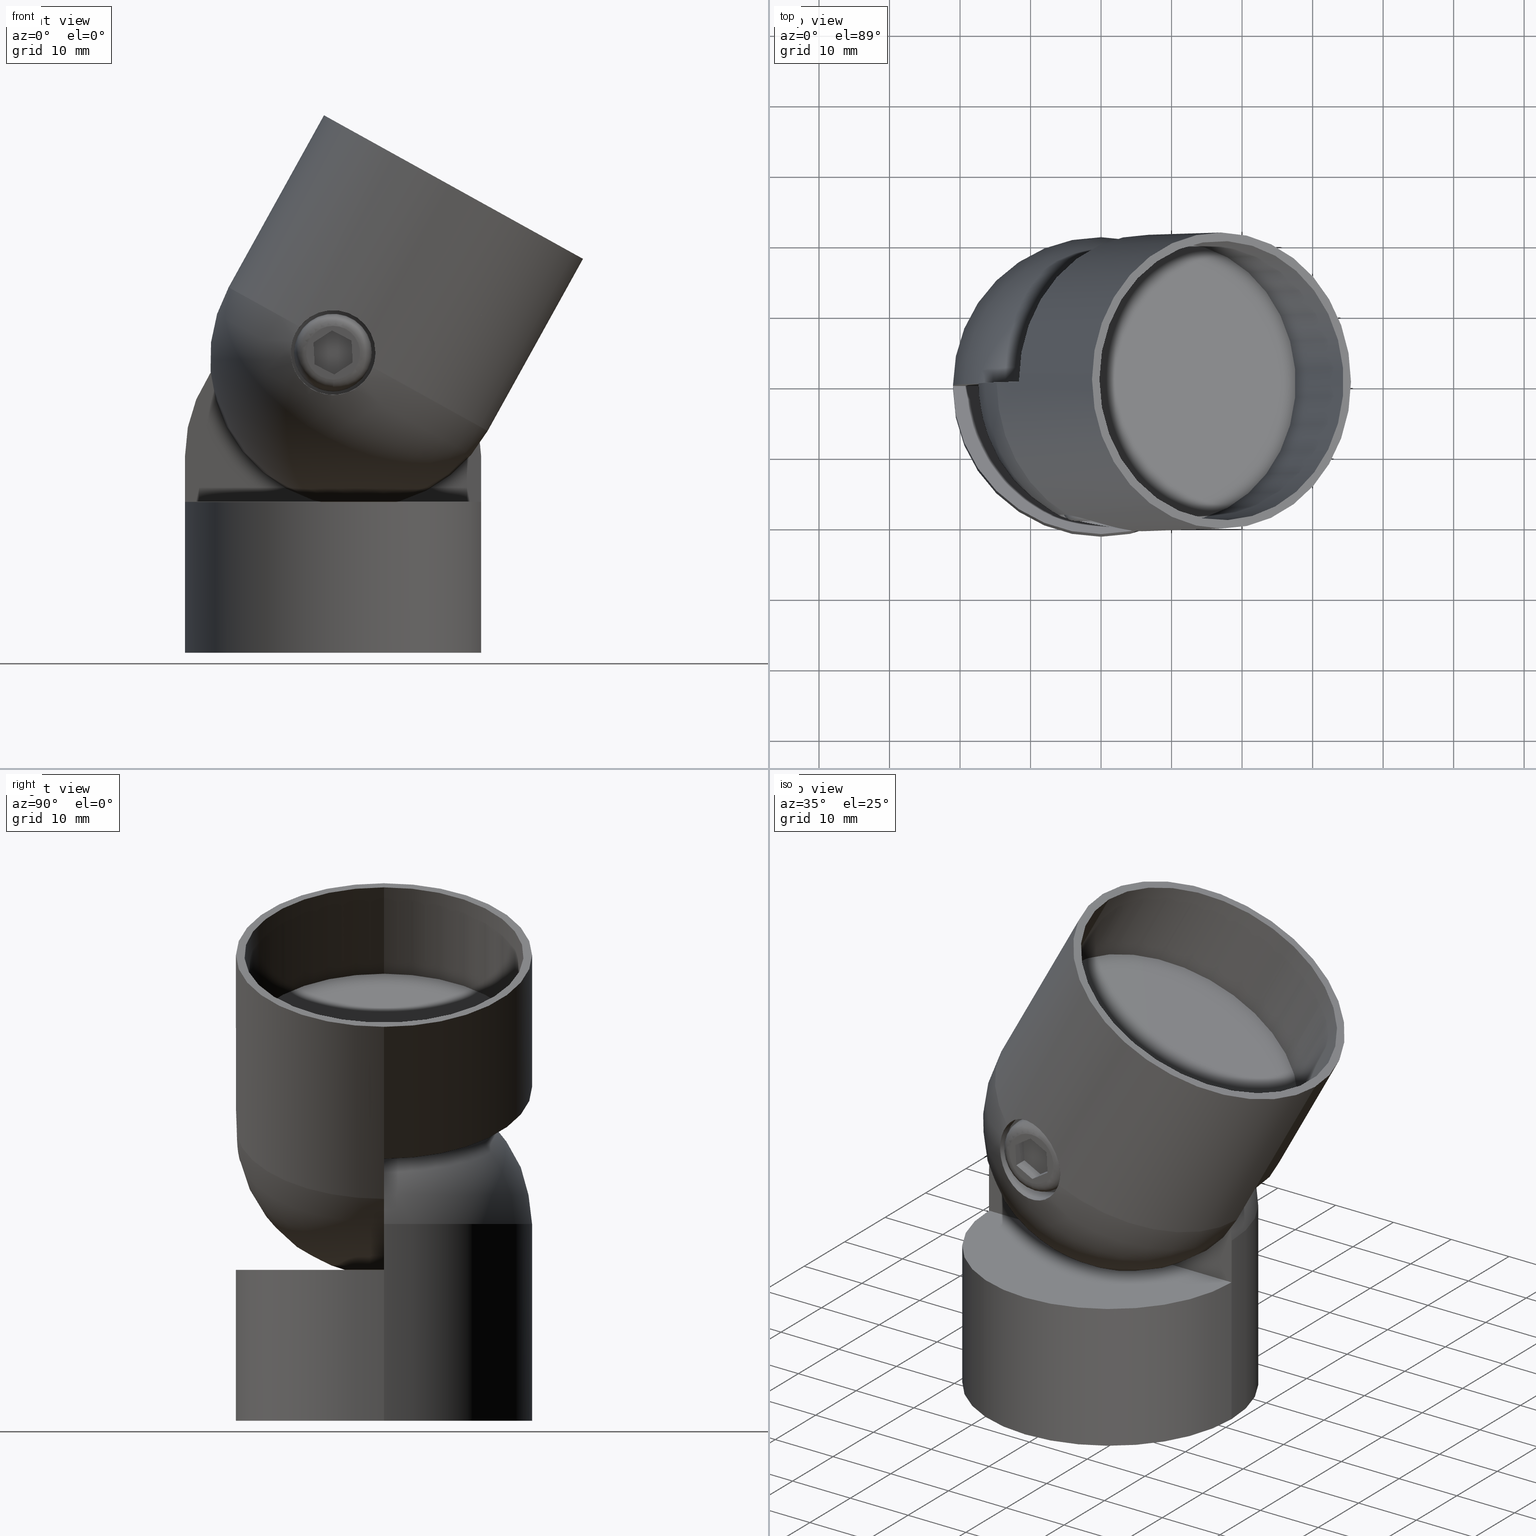
[diagram: canonical four-view strip — front | top / right | iso, engineering-drawing reading convention]
A machine part, canonical four-view strip (front | top / right | iso — engineering-drawing reading convention). The complete STEP part file that produces these views, byte-faithful:
ISO-10303-21;
HEADER;
/* Generated by software containing ST-Developer
 * from STEP Tools, Inc. (www.steptools.com) 
 */
/* OPTION: using custom schema-name function */

FILE_DESCRIPTION(
/* description */ (''),
/* implementation_level */ '2;1');

FILE_NAME(
/* name */ '50604-240_Cosch_Edelstahltechnik.stp',
/* time_stamp */ '2018-11-17T18:22:57+01:00',
/* author */ (''),
/* organization */ (''),
/* preprocessor_version */ 'ST-DEVELOPER v16',
/* originating_system */ 'SIEMENS PLM Software NX 11.0',
/* authorisation */ '');

FILE_SCHEMA (('AUTOMOTIVE_DESIGN { 1 0 10303 214 3 1 1 1 }'));
ENDSEC;

DATA;
#10=CONSTRUCTIVE_GEOMETRY_REPRESENTATION_RELATIONSHIP(
'supplemental geometry','',#34,#11);
#11=CONSTRUCTIVE_GEOMETRY_REPRESENTATION('supplemental geometry',(#436),
#790);
#12=GEOMETRICALLY_BOUNDED_WIREFRAME_SHAPE_REPRESENTATION(
'Goge239860DCck8x-None',(#35),#790);
#13=PROPERTY_DEFINITION_REPRESENTATION(#17,#15);
#14=PROPERTY_DEFINITION_REPRESENTATION(#18,#16);
#15=REPRESENTATION('',(#19),#790);
#16=REPRESENTATION('',(#20),#790);
#17=PROPERTY_DEFINITION('pmi validation property','',#25);
#18=PROPERTY_DEFINITION('pmi validation property','',#25);
#19=VALUE_REPRESENTATION_ITEM('number of annotations',COUNT_MEASURE(0.));
#20=VALUE_REPRESENTATION_ITEM('number of views',COUNT_MEASURE(0.));
#21=SHAPE_REPRESENTATION_RELATIONSHIP('None',
'relationship between Goge239860DCck8x-None and Goge239860DCck8x-None',
#34,#23);
#22=SHAPE_REPRESENTATION_RELATIONSHIP('None',
'relationship between Goge239860DCck8x-None and Goge239860DCck8x-None',
#34,#12);
#23=ADVANCED_BREP_SHAPE_REPRESENTATION('Goge239860DCck8x-None',(#49,#50),
#790);
#24=SHAPE_DEFINITION_REPRESENTATION(#25,#34);
#25=PRODUCT_DEFINITION_SHAPE('','',#26);
#26=PRODUCT_DEFINITION(' ','',#28,#27);
#27=PRODUCT_DEFINITION_CONTEXT('part definition',#33,'design');
#28=PRODUCT_DEFINITION_FORMATION_WITH_SPECIFIED_SOURCE(' ',' ',#30,
 .NOT_KNOWN.);
#29=PRODUCT_RELATED_PRODUCT_CATEGORY('part','',(#30));
#30=PRODUCT('Goge239860DCck8x','Goge239860DCck8x',' ',(#31));
#31=PRODUCT_CONTEXT(' ',#33,'mechanical');
#32=APPLICATION_PROTOCOL_DEFINITION('international standard',
'automotive_design',2010,#33);
#33=APPLICATION_CONTEXT(
'core data for automotive mechanical design processes');
#34=SHAPE_REPRESENTATION('Goge239860DCck8x-None',(#435),#790);
#35=GEOMETRIC_CURVE_SET('None',(#601,#602));
#36=TOROIDAL_SURFACE('',#471,3.8,1.7);
#37=B_SPLINE_CURVE_WITH_KNOTS('',3,(#629,#630,#631,#632,#633,#634,#635,
#636,#637,#638,#639,#640,#641,#642,#643,#644,#645,#646,#647,#648,#649,#650,
#651,#652,#653,#654,#655,#656,#657,#658,#659,#660,#661,#662,#663,#664),
 .UNSPECIFIED.,.F.,.F.,(4,2,2,2,2,2,2,2,2,2,2,2,2,2,2,2,2,4),(0.,0.0624999999999983,
0.124999999999997,0.187499999999995,0.218749999999995,0.249999999999994,
0.312499999999995,0.374999999999995,0.437499999999996,0.499999999999996,
0.562499999999997,0.624999999999997,0.687499999999998,0.749999999999998,
0.812499999999999,0.874999999999999,0.9375,1.),.UNSPECIFIED.);
#38=B_SPLINE_CURVE_WITH_KNOTS('',3,(#688,#689,#690,#691,#692,#693,#694,
#695,#696,#697,#698,#699,#700,#701,#702,#703,#704,#705,#706,#707,#708,#709,
#710,#711,#712,#713,#714,#715,#716,#717,#718,#719,#720,#721,#722,#723,#724,
#725,#726,#727,#728,#729,#730,#731,#732,#733),.UNSPECIFIED.,.F.,.F.,(4,
2,2,2,2,2,2,2,1,2,2,2,2,2,1,2,2,2,2,2,2,2,2,4),(0.,0.0625000000000008,0.0937500000000012,
0.125000000000002,0.156250000000002,0.187500000000002,0.250000000000003,
0.281250000000003,0.312500000000003,0.343750000000003,0.375000000000003,
0.437500000000003,0.500000000000003,0.531250000000003,0.562500000000003,
0.593750000000003,0.625000000000002,0.687500000000002,0.750000000000002,
0.812500000000002,0.875000000000002,0.906250000000001,0.937500000000001,
1.),.UNSPECIFIED.);
#39=SURFACE_STYLE_USAGE(.BOTH.,#41);
#40=SURFACE_STYLE_USAGE(.BOTH.,#42);
#41=SURFACE_SIDE_STYLE('',(#43));
#42=SURFACE_SIDE_STYLE('',(#44));
#43=SURFACE_STYLE_FILL_AREA(#45);
#44=SURFACE_STYLE_FILL_AREA(#46);
#45=FILL_AREA_STYLE('',(#47));
#46=FILL_AREA_STYLE('',(#48));
#47=FILL_AREA_STYLE_COLOUR('',#434);
#48=FILL_AREA_STYLE_COLOUR('',#434);
#49=MANIFOLD_SOLID_BREP('',#51);
#50=MANIFOLD_SOLID_BREP('',#52);
#51=CLOSED_SHELL('',(#87,#88,#89,#90,#91,#92,#93));
#52=CLOSED_SHELL('',(#94,#95,#96,#97,#98,#99,#100,#101,#102,#103,#104,#105,
#106,#107,#108,#109,#110,#111,#112));
#53=SPHERICAL_SURFACE('',#447,21.);
#54=SPHERICAL_SURFACE('',#462,21.);
#55=FACE_OUTER_BOUND('',#193,.T.);
#56=FACE_OUTER_BOUND('',#194,.T.);
#57=FACE_OUTER_BOUND('',#195,.T.);
#58=FACE_OUTER_BOUND('',#198,.T.);
#59=FACE_OUTER_BOUND('',#203,.T.);
#60=FACE_OUTER_BOUND('',#204,.T.);
#61=FACE_OUTER_BOUND('',#205,.T.);
#62=FACE_OUTER_BOUND('',#216,.T.);
#63=FACE_OUTER_BOUND('',#217,.T.);
#64=FACE_OUTER_BOUND('',#218,.T.);
#65=FACE_OUTER_BOUND('',#219,.T.);
#66=FACE_OUTER_BOUND('',#220,.T.);
#67=FACE_OUTER_BOUND('',#221,.T.);
#68=FACE_OUTER_BOUND('',#222,.T.);
#69=FACE_OUTER_BOUND('',#225,.T.);
#70=PLANE('',#442);
#71=PLANE('',#445);
#72=PLANE('',#446);
#73=PLANE('',#450);
#74=PLANE('',#457);
#75=PLANE('',#460);
#76=PLANE('',#461);
#77=PLANE('',#465);
#78=PLANE('',#468);
#79=PLANE('',#472);
#80=PLANE('',#473);
#81=PLANE('',#474);
#82=PLANE('',#475);
#83=PLANE('',#476);
#84=PLANE('',#477);
#85=PLANE('',#478);
#86=PLANE('',#481);
#87=ADVANCED_FACE('',(#167,#168),#113,.T.);
#88=ADVANCED_FACE('',(#169,#170),#70,.T.);
#89=ADVANCED_FACE('',(#55),#71,.F.);
#90=ADVANCED_FACE('',(#56),#72,.T.);
#91=ADVANCED_FACE('',(#57),#53,.T.);
#92=ADVANCED_FACE('',(#171,#172),#114,.F.);
#93=ADVANCED_FACE('',(#58),#73,.T.);
#94=ADVANCED_FACE('',(#173,#174),#115,.T.);
#95=ADVANCED_FACE('',(#175,#176),#74,.T.);
#96=ADVANCED_FACE('',(#59),#75,.F.);
#97=ADVANCED_FACE('',(#60),#76,.T.);
#98=ADVANCED_FACE('',(#61),#54,.T.);
#99=ADVANCED_FACE('',(#177,#178),#77,.F.);
#100=ADVANCED_FACE('',(#179,#180),#116,.F.);
#101=ADVANCED_FACE('',(#181,#182),#78,.T.);
#102=ADVANCED_FACE('',(#183,#184),#117,.T.);
#103=ADVANCED_FACE('',(#185,#186),#36,.T.);
#104=ADVANCED_FACE('',(#62),#79,.F.);
#105=ADVANCED_FACE('',(#63),#80,.F.);
#106=ADVANCED_FACE('',(#64),#81,.F.);
#107=ADVANCED_FACE('',(#65),#82,.F.);
#108=ADVANCED_FACE('',(#66),#83,.F.);
#109=ADVANCED_FACE('',(#67),#84,.F.);
#110=ADVANCED_FACE('',(#68),#85,.T.);
#111=ADVANCED_FACE('',(#187,#188),#118,.F.);
#112=ADVANCED_FACE('',(#69),#86,.T.);
#113=CYLINDRICAL_SURFACE('',#440,21.);
#114=CYLINDRICAL_SURFACE('',#449,19.8);
#115=CYLINDRICAL_SURFACE('',#455,21.);
#116=CYLINDRICAL_SURFACE('',#466,6.);
#117=CYLINDRICAL_SURFACE('',#470,5.5);
#118=CYLINDRICAL_SURFACE('',#480,19.8);
#119=LINE('',#606,#143);
#120=LINE('',#611,#144);
#121=LINE('',#621,#145);
#122=LINE('',#669,#146);
#123=LINE('',#673,#147);
#124=LINE('',#685,#148);
#125=LINE('',#741,#149);
#126=LINE('',#744,#150);
#127=LINE('',#746,#151);
#128=LINE('',#748,#152);
#129=LINE('',#750,#153);
#130=LINE('',#752,#154);
#131=LINE('',#760,#155);
#132=LINE('',#762,#156);
#133=LINE('',#764,#157);
#134=LINE('',#766,#158);
#135=LINE('',#768,#159);
#136=LINE('',#770,#160);
#137=LINE('',#772,#161);
#138=LINE('',#774,#162);
#139=LINE('',#776,#163);
#140=LINE('',#778,#164);
#141=LINE('',#780,#165);
#142=LINE('',#782,#166);
#143=VECTOR('',#488,1.);
#144=VECTOR('',#491,1.);
#145=VECTOR('',#504,1.);
#146=VECTOR('',#519,1.);
#147=VECTOR('',#522,1.);
#148=VECTOR('',#537,1.);
#149=VECTOR('',#552,1.);
#150=VECTOR('',#553,1.);
#151=VECTOR('',#554,1.);
#152=VECTOR('',#555,1.);
#153=VECTOR('',#556,1.);
#154=VECTOR('',#557,1.);
#155=VECTOR('',#568,1.);
#156=VECTOR('',#569,1.);
#157=VECTOR('',#570,1.);
#158=VECTOR('',#573,1.);
#159=VECTOR('',#574,1.);
#160=VECTOR('',#577,1.);
#161=VECTOR('',#578,1.);
#162=VECTOR('',#581,1.);
#163=VECTOR('',#582,1.);
#164=VECTOR('',#585,1.);
#165=VECTOR('',#586,1.);
#166=VECTOR('',#589,1.);
#167=FACE_BOUND('',#189,.T.);
#168=FACE_BOUND('',#190,.T.);
#169=FACE_BOUND('',#191,.T.);
#170=FACE_BOUND('',#192,.T.);
#171=FACE_BOUND('',#196,.T.);
#172=FACE_BOUND('',#197,.T.);
#173=FACE_BOUND('',#199,.T.);
#174=FACE_BOUND('',#200,.T.);
#175=FACE_BOUND('',#201,.T.);
#176=FACE_BOUND('',#202,.T.);
#177=FACE_BOUND('',#206,.T.);
#178=FACE_BOUND('',#207,.T.);
#179=FACE_BOUND('',#208,.T.);
#180=FACE_BOUND('',#209,.T.);
#181=FACE_BOUND('',#210,.T.);
#182=FACE_BOUND('',#211,.T.);
#183=FACE_BOUND('',#212,.T.);
#184=FACE_BOUND('',#213,.T.);
#185=FACE_BOUND('',#214,.T.);
#186=FACE_BOUND('',#215,.T.);
#187=FACE_BOUND('',#223,.T.);
#188=FACE_BOUND('',#224,.T.);
#189=EDGE_LOOP('',(#226));
#190=EDGE_LOOP('',(#227,#228,#229,#230));
#191=EDGE_LOOP('',(#231));
#192=EDGE_LOOP('',(#232));
#193=EDGE_LOOP('',(#233,#234,#235,#236,#237));
#194=EDGE_LOOP('',(#238,#239));
#195=EDGE_LOOP('',(#240,#241,#242));
#196=EDGE_LOOP('',(#243));
#197=EDGE_LOOP('',(#244));
#198=EDGE_LOOP('',(#245));
#199=EDGE_LOOP('',(#246,#247,#248,#249,#250,#251));
#200=EDGE_LOOP('',(#252));
#201=EDGE_LOOP('',(#253));
#202=EDGE_LOOP('',(#254));
#203=EDGE_LOOP('',(#255,#256,#257,#258,#259));
#204=EDGE_LOOP('',(#260,#261));
#205=EDGE_LOOP('',(#262,#263,#264,#265,#266));
#206=EDGE_LOOP('',(#267));
#207=EDGE_LOOP('',(#268));
#208=EDGE_LOOP('',(#269,#270));
#209=EDGE_LOOP('',(#271));
#210=EDGE_LOOP('',(#272,#273,#274,#275,#276,#277));
#211=EDGE_LOOP('',(#278));
#212=EDGE_LOOP('',(#279));
#213=EDGE_LOOP('',(#280));
#214=EDGE_LOOP('',(#281));
#215=EDGE_LOOP('',(#282));
#216=EDGE_LOOP('',(#283,#284,#285,#286));
#217=EDGE_LOOP('',(#287,#288,#289,#290));
#218=EDGE_LOOP('',(#291,#292,#293,#294));
#219=EDGE_LOOP('',(#295,#296,#297,#298));
#220=EDGE_LOOP('',(#299,#300,#301,#302));
#221=EDGE_LOOP('',(#303,#304,#305,#306));
#222=EDGE_LOOP('',(#307,#308,#309,#310,#311,#312));
#223=EDGE_LOOP('',(#313));
#224=EDGE_LOOP('',(#314));
#225=EDGE_LOOP('',(#315));
#226=ORIENTED_EDGE('',*,*,#350,.T.);
#227=ORIENTED_EDGE('',*,*,#351,.T.);
#228=ORIENTED_EDGE('',*,*,#352,.T.);
#229=ORIENTED_EDGE('',*,*,#353,.T.);
#230=ORIENTED_EDGE('',*,*,#354,.F.);
#231=ORIENTED_EDGE('',*,*,#355,.F.);
#232=ORIENTED_EDGE('',*,*,#350,.F.);
#233=ORIENTED_EDGE('',*,*,#353,.F.);
#234=ORIENTED_EDGE('',*,*,#356,.T.);
#235=ORIENTED_EDGE('',*,*,#357,.T.);
#236=ORIENTED_EDGE('',*,*,#351,.F.);
#237=ORIENTED_EDGE('',*,*,#358,.T.);
#238=ORIENTED_EDGE('',*,*,#358,.F.);
#239=ORIENTED_EDGE('',*,*,#354,.T.);
#240=ORIENTED_EDGE('',*,*,#352,.F.);
#241=ORIENTED_EDGE('',*,*,#357,.F.);
#242=ORIENTED_EDGE('',*,*,#356,.F.);
#243=ORIENTED_EDGE('',*,*,#359,.T.);
#244=ORIENTED_EDGE('',*,*,#355,.T.);
#245=ORIENTED_EDGE('',*,*,#359,.F.);
#246=ORIENTED_EDGE('',*,*,#360,.F.);
#247=ORIENTED_EDGE('',*,*,#361,.T.);
#248=ORIENTED_EDGE('',*,*,#362,.T.);
#249=ORIENTED_EDGE('',*,*,#363,.F.);
#250=ORIENTED_EDGE('',*,*,#364,.T.);
#251=ORIENTED_EDGE('',*,*,#365,.T.);
#252=ORIENTED_EDGE('',*,*,#366,.T.);
#253=ORIENTED_EDGE('',*,*,#367,.F.);
#254=ORIENTED_EDGE('',*,*,#366,.F.);
#255=ORIENTED_EDGE('',*,*,#362,.F.);
#256=ORIENTED_EDGE('',*,*,#368,.T.);
#257=ORIENTED_EDGE('',*,*,#369,.T.);
#258=ORIENTED_EDGE('',*,*,#364,.F.);
#259=ORIENTED_EDGE('',*,*,#370,.T.);
#260=ORIENTED_EDGE('',*,*,#370,.F.);
#261=ORIENTED_EDGE('',*,*,#363,.T.);
#262=ORIENTED_EDGE('',*,*,#371,.F.);
#263=ORIENTED_EDGE('',*,*,#365,.F.);
#264=ORIENTED_EDGE('',*,*,#369,.F.);
#265=ORIENTED_EDGE('',*,*,#368,.F.);
#266=ORIENTED_EDGE('',*,*,#361,.F.);
#267=ORIENTED_EDGE('',*,*,#372,.F.);
#268=ORIENTED_EDGE('',*,*,#373,.F.);
#269=ORIENTED_EDGE('',*,*,#360,.T.);
#270=ORIENTED_EDGE('',*,*,#371,.T.);
#271=ORIENTED_EDGE('',*,*,#373,.T.);
#272=ORIENTED_EDGE('',*,*,#374,.F.);
#273=ORIENTED_EDGE('',*,*,#375,.F.);
#274=ORIENTED_EDGE('',*,*,#376,.F.);
#275=ORIENTED_EDGE('',*,*,#377,.F.);
#276=ORIENTED_EDGE('',*,*,#378,.F.);
#277=ORIENTED_EDGE('',*,*,#379,.F.);
#278=ORIENTED_EDGE('',*,*,#380,.T.);
#279=ORIENTED_EDGE('',*,*,#381,.T.);
#280=ORIENTED_EDGE('',*,*,#372,.T.);
#281=ORIENTED_EDGE('',*,*,#380,.F.);
#282=ORIENTED_EDGE('',*,*,#381,.F.);
#283=ORIENTED_EDGE('',*,*,#374,.T.);
#284=ORIENTED_EDGE('',*,*,#382,.T.);
#285=ORIENTED_EDGE('',*,*,#383,.T.);
#286=ORIENTED_EDGE('',*,*,#384,.F.);
#287=ORIENTED_EDGE('',*,*,#379,.T.);
#288=ORIENTED_EDGE('',*,*,#385,.T.);
#289=ORIENTED_EDGE('',*,*,#386,.T.);
#290=ORIENTED_EDGE('',*,*,#382,.F.);
#291=ORIENTED_EDGE('',*,*,#378,.T.);
#292=ORIENTED_EDGE('',*,*,#387,.T.);
#293=ORIENTED_EDGE('',*,*,#388,.T.);
#294=ORIENTED_EDGE('',*,*,#385,.F.);
#295=ORIENTED_EDGE('',*,*,#377,.T.);
#296=ORIENTED_EDGE('',*,*,#389,.T.);
#297=ORIENTED_EDGE('',*,*,#390,.T.);
#298=ORIENTED_EDGE('',*,*,#387,.F.);
#299=ORIENTED_EDGE('',*,*,#376,.T.);
#300=ORIENTED_EDGE('',*,*,#391,.T.);
#301=ORIENTED_EDGE('',*,*,#392,.T.);
#302=ORIENTED_EDGE('',*,*,#389,.F.);
#303=ORIENTED_EDGE('',*,*,#375,.T.);
#304=ORIENTED_EDGE('',*,*,#384,.T.);
#305=ORIENTED_EDGE('',*,*,#393,.T.);
#306=ORIENTED_EDGE('',*,*,#391,.F.);
#307=ORIENTED_EDGE('',*,*,#383,.F.);
#308=ORIENTED_EDGE('',*,*,#386,.F.);
#309=ORIENTED_EDGE('',*,*,#388,.F.);
#310=ORIENTED_EDGE('',*,*,#390,.F.);
#311=ORIENTED_EDGE('',*,*,#392,.F.);
#312=ORIENTED_EDGE('',*,*,#393,.F.);
#313=ORIENTED_EDGE('',*,*,#394,.T.);
#314=ORIENTED_EDGE('',*,*,#367,.T.);
#315=ORIENTED_EDGE('',*,*,#394,.F.);
#316=VERTEX_POINT('',#605);
#317=VERTEX_POINT('',#607);
#318=VERTEX_POINT('',#608);
#319=VERTEX_POINT('',#610);
#320=VERTEX_POINT('',#612);
#321=VERTEX_POINT('',#616);
#322=VERTEX_POINT('',#619);
#323=VERTEX_POINT('',#626);
#324=VERTEX_POINT('',#665);
#325=VERTEX_POINT('',#666);
#326=VERTEX_POINT('',#668);
#327=VERTEX_POINT('',#670);
#328=VERTEX_POINT('',#672);
#329=VERTEX_POINT('',#674);
#330=VERTEX_POINT('',#677);
#331=VERTEX_POINT('',#680);
#332=VERTEX_POINT('',#683);
#333=VERTEX_POINT('',#736);
#334=VERTEX_POINT('',#738);
#335=VERTEX_POINT('',#742);
#336=VERTEX_POINT('',#743);
#337=VERTEX_POINT('',#745);
#338=VERTEX_POINT('',#747);
#339=VERTEX_POINT('',#749);
#340=VERTEX_POINT('',#751);
#341=VERTEX_POINT('',#754);
#342=VERTEX_POINT('',#757);
#343=VERTEX_POINT('',#761);
#344=VERTEX_POINT('',#763);
#345=VERTEX_POINT('',#767);
#346=VERTEX_POINT('',#771);
#347=VERTEX_POINT('',#775);
#348=VERTEX_POINT('',#779);
#349=VERTEX_POINT('',#786);
#350=EDGE_CURVE('',#316,#316,#395,.T.);
#351=EDGE_CURVE('',#317,#318,#119,.T.);
#352=EDGE_CURVE('',#318,#319,#396,.T.);
#353=EDGE_CURVE('',#319,#320,#120,.T.);
#354=EDGE_CURVE('',#317,#320,#397,.T.);
#355=EDGE_CURVE('',#321,#321,#398,.T.);
#356=EDGE_CURVE('',#319,#322,#399,.T.);
#357=EDGE_CURVE('',#322,#318,#400,.T.);
#358=EDGE_CURVE('',#317,#320,#121,.T.);
#359=EDGE_CURVE('',#323,#323,#401,.T.);
#360=EDGE_CURVE('',#324,#325,#37,.T.);
#361=EDGE_CURVE('',#324,#326,#402,.T.);
#362=EDGE_CURVE('',#326,#327,#122,.T.);
#363=EDGE_CURVE('',#328,#327,#403,.T.);
#364=EDGE_CURVE('',#328,#329,#123,.T.);
#365=EDGE_CURVE('',#329,#325,#404,.T.);
#366=EDGE_CURVE('',#330,#330,#405,.T.);
#367=EDGE_CURVE('',#331,#331,#406,.T.);
#368=EDGE_CURVE('',#326,#332,#407,.T.);
#369=EDGE_CURVE('',#332,#329,#408,.T.);
#370=EDGE_CURVE('',#328,#327,#124,.T.);
#371=EDGE_CURVE('',#325,#324,#38,.T.);
#372=EDGE_CURVE('',#333,#333,#409,.T.);
#373=EDGE_CURVE('',#334,#334,#410,.T.);
#374=EDGE_CURVE('',#335,#336,#125,.T.);
#375=EDGE_CURVE('',#337,#335,#126,.T.);
#376=EDGE_CURVE('',#338,#337,#127,.T.);
#377=EDGE_CURVE('',#339,#338,#128,.T.);
#378=EDGE_CURVE('',#340,#339,#129,.T.);
#379=EDGE_CURVE('',#336,#340,#130,.T.);
#380=EDGE_CURVE('',#341,#341,#411,.T.);
#381=EDGE_CURVE('',#342,#342,#412,.T.);
#382=EDGE_CURVE('',#336,#343,#131,.T.);
#383=EDGE_CURVE('',#343,#344,#132,.T.);
#384=EDGE_CURVE('',#335,#344,#133,.T.);
#385=EDGE_CURVE('',#340,#345,#134,.T.);
#386=EDGE_CURVE('',#345,#343,#135,.T.);
#387=EDGE_CURVE('',#339,#346,#136,.T.);
#388=EDGE_CURVE('',#346,#345,#137,.T.);
#389=EDGE_CURVE('',#338,#347,#138,.T.);
#390=EDGE_CURVE('',#347,#346,#139,.T.);
#391=EDGE_CURVE('',#337,#348,#140,.T.);
#392=EDGE_CURVE('',#348,#347,#141,.T.);
#393=EDGE_CURVE('',#344,#348,#142,.T.);
#394=EDGE_CURVE('',#349,#349,#413,.T.);
#395=CIRCLE('',#437,21.);
#396=CIRCLE('',#438,21.);
#397=CIRCLE('',#439,21.);
#398=CIRCLE('',#441,19.8);
#399=CIRCLE('',#443,21.);
#400=CIRCLE('',#444,21.);
#401=CIRCLE('',#448,19.8);
#402=CIRCLE('',#451,21.);
#403=CIRCLE('',#452,21.);
#404=CIRCLE('',#453,21.);
#405=CIRCLE('',#454,21.);
#406=CIRCLE('',#456,19.8);
#407=CIRCLE('',#458,21.);
#408=CIRCLE('',#459,21.);
#409=CIRCLE('',#463,5.5);
#410=CIRCLE('',#464,6.);
#411=CIRCLE('',#467,3.8);
#412=CIRCLE('',#469,5.5);
#413=CIRCLE('',#479,19.8);
#414=CURVE_STYLE('',#415,POSITIVE_LENGTH_MEASURE(0.7),#432);
#415=DRAUGHTING_PRE_DEFINED_CURVE_FONT('continuous');
#416=PRESENTATION_LAYER_ASSIGNMENT('61','Layer 61',(#601,#436));
#417=PRESENTATION_LAYER_ASSIGNMENT('1','Layer 1',(#602,#49,#50));
#418=STYLED_ITEM('',(#423),#601);
#419=STYLED_ITEM('',(#424),#602);
#420=STYLED_ITEM('',(#425),#436);
#421=STYLED_ITEM('',(#426),#49);
#422=STYLED_ITEM('',(#427),#50);
#423=PRESENTATION_STYLE_ASSIGNMENT((#428));
#424=PRESENTATION_STYLE_ASSIGNMENT((#429));
#425=PRESENTATION_STYLE_ASSIGNMENT((#414));
#426=PRESENTATION_STYLE_ASSIGNMENT((#39));
#427=PRESENTATION_STYLE_ASSIGNMENT((#40));
#428=POINT_STYLE('',#430,POSITIVE_LENGTH_MEASURE(3.),#432);
#429=POINT_STYLE('',#431,POSITIVE_LENGTH_MEASURE(3.),#433);
#430=PRE_DEFINED_POINT_MARKER_SYMBOL('plus');
#431=PRE_DEFINED_POINT_MARKER_SYMBOL('plus');
#432=COLOUR_RGB('Medium Maroon',0.6,0.4,0.4);
#433=COLOUR_RGB('Medium Royal',0.2,0.4,0.8);
#434=COLOUR_RGB('Medium Steel',0.596063172350652,0.666666666666667,0.686259250782025);
#435=AXIS2_PLACEMENT_3D('',#600,#482,#483);
#436=AXIS2_PLACEMENT_3D('',#603,#484,#485);
#437=AXIS2_PLACEMENT_3D('',#604,#486,#487);
#438=AXIS2_PLACEMENT_3D('',#609,#489,#490);
#439=AXIS2_PLACEMENT_3D('',#613,#492,#493);
#440=AXIS2_PLACEMENT_3D('',#614,#494,#495);
#441=AXIS2_PLACEMENT_3D('',#615,#496,#497);
#442=AXIS2_PLACEMENT_3D('',#617,#498,#499);
#443=AXIS2_PLACEMENT_3D('',#618,#500,#501);
#444=AXIS2_PLACEMENT_3D('',#620,#502,#503);
#445=AXIS2_PLACEMENT_3D('',#622,#505,#506);
#446=AXIS2_PLACEMENT_3D('',#623,#507,#508);
#447=AXIS2_PLACEMENT_3D('',#624,#509,#510);
#448=AXIS2_PLACEMENT_3D('',#625,#511,#512);
#449=AXIS2_PLACEMENT_3D('',#627,#513,#514);
#450=AXIS2_PLACEMENT_3D('',#628,#515,#516);
#451=AXIS2_PLACEMENT_3D('',#667,#517,#518);
#452=AXIS2_PLACEMENT_3D('',#671,#520,#521);
#453=AXIS2_PLACEMENT_3D('',#675,#523,#524);
#454=AXIS2_PLACEMENT_3D('',#676,#525,#526);
#455=AXIS2_PLACEMENT_3D('',#678,#527,#528);
#456=AXIS2_PLACEMENT_3D('',#679,#529,#530);
#457=AXIS2_PLACEMENT_3D('',#681,#531,#532);
#458=AXIS2_PLACEMENT_3D('',#682,#533,#534);
#459=AXIS2_PLACEMENT_3D('',#684,#535,#536);
#460=AXIS2_PLACEMENT_3D('',#686,#538,#539);
#461=AXIS2_PLACEMENT_3D('',#687,#540,#541);
#462=AXIS2_PLACEMENT_3D('',#734,#542,#543);
#463=AXIS2_PLACEMENT_3D('',#735,#544,#545);
#464=AXIS2_PLACEMENT_3D('',#737,#546,#547);
#465=AXIS2_PLACEMENT_3D('',#739,#548,#549);
#466=AXIS2_PLACEMENT_3D('',#740,#550,#551);
#467=AXIS2_PLACEMENT_3D('',#753,#558,#559);
#468=AXIS2_PLACEMENT_3D('',#755,#560,#561);
#469=AXIS2_PLACEMENT_3D('',#756,#562,#563);
#470=AXIS2_PLACEMENT_3D('',#758,#564,#565);
#471=AXIS2_PLACEMENT_3D('',#759,#566,#567);
#472=AXIS2_PLACEMENT_3D('',#765,#571,#572);
#473=AXIS2_PLACEMENT_3D('',#769,#575,#576);
#474=AXIS2_PLACEMENT_3D('',#773,#579,#580);
#475=AXIS2_PLACEMENT_3D('',#777,#583,#584);
#476=AXIS2_PLACEMENT_3D('',#781,#587,#588);
#477=AXIS2_PLACEMENT_3D('',#783,#590,#591);
#478=AXIS2_PLACEMENT_3D('',#784,#592,#593);
#479=AXIS2_PLACEMENT_3D('',#785,#594,#595);
#480=AXIS2_PLACEMENT_3D('',#787,#596,#597);
#481=AXIS2_PLACEMENT_3D('',#788,#598,#599);
#482=DIRECTION('',(0.,0.,1.));
#483=DIRECTION('',(1.,0.,0.));
#484=DIRECTION('',(0.,0.,1.));
#485=DIRECTION('',(1.,0.,0.));
#486=DIRECTION('',(0.,0.,1.));
#487=DIRECTION('',(1.,0.,0.));
#488=DIRECTION('',(0.,0.,1.));
#489=DIRECTION('',(0.,0.,-1.));
#490=DIRECTION('',(1.,0.,0.));
#491=DIRECTION('',(0.,0.,-1.));
#492=DIRECTION('',(0.,0.,1.));
#493=DIRECTION('',(1.,0.,0.));
#494=DIRECTION('',(0.,0.,1.));
#495=DIRECTION('',(1.,0.,0.));
#496=DIRECTION('',(0.,0.,-1.));
#497=DIRECTION('',(1.,1.22464679914735E-16,0.));
#498=DIRECTION('',(0.,0.,-1.));
#499=DIRECTION('',(-1.,0.,0.));
#500=DIRECTION('',(-2.34291072916505E-15,-1.,0.));
#501=DIRECTION('',(-1.,2.34291072916505E-15,0.));
#502=DIRECTION('',(-2.34291072916505E-15,-1.,0.));
#503=DIRECTION('',(-1.,2.34291072916505E-15,0.));
#504=DIRECTION('',(1.,0.,0.));
#505=DIRECTION('',(2.34291072916505E-15,1.,0.));
#506=DIRECTION('',(-1.,2.34291072916505E-15,0.));
#507=DIRECTION('',(0.,0.,1.));
#508=DIRECTION('',(1.,0.,0.));
#509=DIRECTION('',(6.12323399573677E-17,0.,1.));
#510=DIRECTION('',(1.,0.,0.));
#511=DIRECTION('',(0.,0.,1.));
#512=DIRECTION('',(1.,1.22464679914735E-16,0.));
#513=DIRECTION('',(0.,0.,-1.));
#514=DIRECTION('',(-1.,0.,0.));
#515=DIRECTION('',(0.,0.,-1.));
#516=DIRECTION('',(-1.,0.,0.));
#517=DIRECTION('',(0.484809620246339,0.,0.874619707139395));
#518=DIRECTION('',(0.874619707139395,0.,-0.484809620246339));
#519=DIRECTION('',(0.484809620246339,0.,0.874619707139395));
#520=DIRECTION('',(-0.484809620246339,0.,-0.874619707139395));
#521=DIRECTION('',(0.874619707139395,0.,-0.484809620246339));
#522=DIRECTION('',(-0.484809620246339,0.,-0.874619707139395));
#523=DIRECTION('',(0.484809620246339,0.,0.874619707139395));
#524=DIRECTION('',(0.874619707139395,0.,-0.484809620246339));
#525=DIRECTION('',(-0.484809620246339,0.,-0.874619707139395));
#526=DIRECTION('',(0.874619707139395,0.,-0.484809620246339));
#527=DIRECTION('',(-0.484809620246339,0.,-0.874619707139395));
#528=DIRECTION('',(0.874619707139395,0.,-0.484809620246339));
#529=DIRECTION('',(0.484809620246339,0.,0.874619707139394));
#530=DIRECTION('',(-0.874619707139395,1.22464679914735E-16,0.484809620246339));
#531=DIRECTION('',(0.484809620246339,0.,0.874619707139395));
#532=DIRECTION('',(-0.874619707139395,0.,0.484809620246339));
#533=DIRECTION('',(-2.04915589579608E-15,1.,1.13586566087758E-15));
#534=DIRECTION('',(-0.874619707139395,-2.34291072916505E-15,0.484809620246339));
#535=DIRECTION('',(-2.04915589579608E-15,1.,1.13586566087758E-15));
#536=DIRECTION('',(-0.874619707139395,-2.34291072916505E-15,0.484809620246339));
#537=DIRECTION('',(0.874619707139395,0.,-0.484809620246339));
#538=DIRECTION('',(2.04915589579608E-15,-1.,-1.13586566087758E-15));
#539=DIRECTION('',(-0.874619707139395,-2.34291072916505E-15,0.484809620246339));
#540=DIRECTION('',(-0.484809620246339,0.,-0.874619707139395));
#541=DIRECTION('',(0.874619707139395,0.,-0.484809620246339));
#542=DIRECTION('',(-0.484809620246339,0.,-0.874619707139395));
#543=DIRECTION('',(0.874619707139395,0.,-0.484809620246339));
#544=DIRECTION('',(0.,-1.,0.));
#545=DIRECTION('',(1.,0.,0.));
#546=DIRECTION('',(0.,1.,0.));
#547=DIRECTION('',(1.,0.,0.));
#548=DIRECTION('',(0.,1.,0.));
#549=DIRECTION('',(0.,0.,1.));
#550=DIRECTION('',(0.,1.,0.));
#551=DIRECTION('',(1.,0.,0.));
#552=DIRECTION('',(0.891006524188366,0.,-0.45399049973955));
#553=DIRECTION('',(0.0523359562429438,0.,-0.998629534754574));
#554=DIRECTION('',(-0.838670567945424,0.,-0.544639035015027));
#555=DIRECTION('',(-0.891006524188368,0.,0.453990499739546));
#556=DIRECTION('',(-0.0523359562429438,0.,0.998629534754574));
#557=DIRECTION('',(0.838670567945426,0.,0.544639035015025));
#558=DIRECTION('',(0.,-1.,0.));
#559=DIRECTION('',(0.,0.,-1.));
#560=DIRECTION('',(0.,-1.,0.));
#561=DIRECTION('',(0.,0.,-1.));
#562=DIRECTION('',(0.,1.,0.));
#563=DIRECTION('',(0.,0.,-1.));
#564=DIRECTION('',(0.,-1.,0.));
#565=DIRECTION('',(1.,0.,0.));
#566=DIRECTION('',(0.,-1.,0.));
#567=DIRECTION('',(0.,0.,-1.));
#568=DIRECTION('',(0.,1.,0.));
#569=DIRECTION('',(-0.891006524188366,0.,0.45399049973955));
#570=DIRECTION('',(0.,1.,0.));
#571=DIRECTION('',(-0.45399049973955,0.,-0.891006524188366));
#572=DIRECTION('',(-0.891006524188366,0.,0.45399049973955));
#573=DIRECTION('',(0.,1.,0.));
#574=DIRECTION('',(-0.838670567945426,0.,-0.544639035015025));
#575=DIRECTION('',(0.544639035015025,0.,-0.838670567945426));
#576=DIRECTION('',(-0.838670567945426,0.,-0.544639035015025));
#577=DIRECTION('',(0.,1.,0.));
#578=DIRECTION('',(0.0523359562429438,0.,-0.998629534754574));
#579=DIRECTION('',(0.998629534754574,0.,0.0523359562429438));
#580=DIRECTION('',(0.0523359562429438,0.,-0.998629534754574));
#581=DIRECTION('',(0.,1.,0.));
#582=DIRECTION('',(0.891006524188368,0.,-0.453990499739546));
#583=DIRECTION('',(0.453990499739546,0.,0.891006524188368));
#584=DIRECTION('',(0.891006524188368,0.,-0.453990499739546));
#585=DIRECTION('',(0.,1.,0.));
#586=DIRECTION('',(0.838670567945424,0.,0.544639035015027));
#587=DIRECTION('',(-0.544639035015027,0.,0.838670567945424));
#588=DIRECTION('',(0.838670567945424,0.,0.544639035015027));
#589=DIRECTION('',(-0.0523359562429438,0.,0.998629534754574));
#590=DIRECTION('',(-0.998629534754574,0.,-0.0523359562429438));
#591=DIRECTION('',(-0.0523359562429438,0.,0.998629534754574));
#592=DIRECTION('',(0.,-1.,0.));
#593=DIRECTION('',(0.,0.,-1.));
#594=DIRECTION('',(-0.484809620246339,0.,-0.874619707139394));
#595=DIRECTION('',(-0.874619707139395,1.22464679914735E-16,0.484809620246339));
#596=DIRECTION('',(0.484809620246339,0.,0.874619707139395));
#597=DIRECTION('',(0.874619707139395,0.,-0.484809620246339));
#598=DIRECTION('',(0.484809620246339,0.,0.874619707139394));
#599=DIRECTION('',(0.874619707139395,0.,-0.484809620246339));
#600=CARTESIAN_POINT('',(0.,0.,0.));
#601=CARTESIAN_POINT('',(0.,0.,0.));
#602=CARTESIAN_POINT('',(3.35306453602874,0.,34.3653385495028));
#603=CARTESIAN_POINT('',(0.,0.,0.));
#604=CARTESIAN_POINT('',(0.,0.,0.));
#605=CARTESIAN_POINT('',(21.,0.,0.));
#606=CARTESIAN_POINT('',(-21.,4.9201125312466E-14,21.4));
#607=CARTESIAN_POINT('',(-21.,0.,21.4));
#608=CARTESIAN_POINT('',(-21.,4.9201125312466E-14,27.9));
#609=CARTESIAN_POINT('',(0.,0.,27.9));
#610=CARTESIAN_POINT('',(21.,0.,27.9));
#611=CARTESIAN_POINT('',(21.,0.,21.4));
#612=CARTESIAN_POINT('',(21.,0.,21.4));
#613=CARTESIAN_POINT('',(0.,0.,21.4));
#614=CARTESIAN_POINT('',(0.,0.,0.));
#615=CARTESIAN_POINT('',(0.,0.,0.));
#616=CARTESIAN_POINT('',(19.8,2.42480066231176E-15,0.));
#617=CARTESIAN_POINT('',(0.,0.,0.));
#618=CARTESIAN_POINT('',(0.,0.,27.9));
#619=CARTESIAN_POINT('',(0.,0.,48.9));
#620=CARTESIAN_POINT('',(0.,0.,27.9));
#621=CARTESIAN_POINT('',(21.,0.,21.4));
#622=CARTESIAN_POINT('',(0.,0.,21.4));
#623=CARTESIAN_POINT('',(0.,0.,21.4));
#624=CARTESIAN_POINT('',(0.,0.,27.9));
#625=CARTESIAN_POINT('',(0.,0.,14.));
#626=CARTESIAN_POINT('',(19.8,2.42480066231176E-15,14.));
#627=CARTESIAN_POINT('',(0.,0.,14.));
#628=CARTESIAN_POINT('',(0.,0.,14.));
#629=CARTESIAN_POINT('',(5.631459728409,-20.8653489895759,40.4945746023323));
#630=CARTESIAN_POINT('',(5.75666263957292,-20.8716751864813,40.8351206335457));
#631=CARTESIAN_POINT('',(5.84927966075009,-20.8814106779172,41.1816129215023));
#632=CARTESIAN_POINT('',(5.97217334124865,-20.9050979137473,41.8860464370092));
#633=CARTESIAN_POINT('',(6.00241000642689,-20.9191539209705,42.2462229736764));
#634=CARTESIAN_POINT('',(5.99728861412691,-20.9474947615892,42.9688241654843));
#635=CARTESIAN_POINT('',(5.96239635984274,-20.9614995982135,43.3251279627115));
#636=CARTESIAN_POINT('',(5.86298043960235,-20.9788641969445,43.8524205151118));
#637=CARTESIAN_POINT('',(5.82194677779763,-20.9840415079581,44.0269834222621));
#638=CARTESIAN_POINT('',(5.72373654802991,-20.9925284310584,44.3736734750153));
#639=CARTESIAN_POINT('',(5.66623615079967,-20.9958376895464,44.5464762041335));
#640=CARTESIAN_POINT('',(5.47252121918615,-21.0017990043582,45.0512485318773));
#641=CARTESIAN_POINT('',(5.31476345190341,-21.000598763803,45.3723973435805));
#642=CARTESIAN_POINT('',(4.94318591321037,-20.9834675111546,45.984518010169));
#643=CARTESIAN_POINT('',(4.72657250828857,-20.9672102843819,46.2782426999328));
#644=CARTESIAN_POINT('',(4.25052106428911,-20.9168328430235,46.8149093762983));
#645=CARTESIAN_POINT('',(3.99128339334834,-20.8829008238498,47.0590604526968));
#646=CARTESIAN_POINT('',(3.43142633380005,-20.795336400612,47.4997984552781));
#647=CARTESIAN_POINT('',(3.12835200103574,-20.7411091383705,47.6970840912145));
#648=CARTESIAN_POINT('',(2.50429854253357,-20.6160323836362,48.0288230362582));
#649=CARTESIAN_POINT('',(2.18103782817776,-20.5449206903265,48.1655856966375));
#650=CARTESIAN_POINT('',(1.51234249240526,-20.38627458477,48.3818983435322));
#651=CARTESIAN_POINT('',(1.16765320028025,-20.2988023724791,48.4604778378069));
#652=CARTESIAN_POINT('',(0.481195715439217,-20.1159427199808,48.5557030986054));
#653=CARTESIAN_POINT('',(0.136274713514892,-20.0198157685276,48.5734954000375));
#654=CARTESIAN_POINT('',(-0.557811640479396,-19.8212223131951,48.5490984236191));
#655=CARTESIAN_POINT('',(-0.902990938848728,-19.7198857249485,48.5066174801506));
#656=CARTESIAN_POINT('',(-1.57579679874316,-19.5216727210352,48.3645754469741));
#657=CARTESIAN_POINT('',(-1.90578549650478,-19.4240937355474,48.2649764551603));
#658=CARTESIAN_POINT('',(-2.55366217903294,-19.2369299804915,48.0056396152885));
#659=CARTESIAN_POINT('',(-2.86698294285115,-19.1487462732105,47.8472133645263));
#660=CARTESIAN_POINT('',(-3.45906286212986,-18.9920832196689,47.4799011524967));
#661=CARTESIAN_POINT('',(-3.74014421649671,-18.9229044521093,47.2701491295823));
#662=CARTESIAN_POINT('',(-4.2710199794788,-18.8087246193045,46.7941246643598));
#663=CARTESIAN_POINT('',(-4.51801076240652,-18.7645085770833,46.5296847825258));
#664=CARTESIAN_POINT('',(-4.74003931256345,-18.7364209980224,46.243590397877));
#665=CARTESIAN_POINT('',(5.631459728409,-20.8653489895759,40.4945746023323));
#666=CARTESIAN_POINT('',(-4.74003931256345,-18.7364209980224,46.243590397877));
#667=CARTESIAN_POINT('',(3.55486654045628,0.,41.6456490025996));
#668=CARTESIAN_POINT('',(21.9218803903836,0.,31.4646469774265));
#669=CARTESIAN_POINT('',(25.0731429219848,0.,37.1496750738326));
#670=CARTESIAN_POINT('',(25.0731429219848,0.,37.1496750738326));
#671=CARTESIAN_POINT('',(6.70612907205748,0.,47.3306770990057));
#672=CARTESIAN_POINT('',(-11.6608847778698,0.,57.5116791241788));
#673=CARTESIAN_POINT('',(-11.6608847778698,-4.9201125312466E-14,57.5116791241788));
#674=CARTESIAN_POINT('',(-14.812147309471,-4.9201125312466E-14,51.8266510277727));
#675=CARTESIAN_POINT('',(3.55486654045628,0.,41.6456490025996));
#676=CARTESIAN_POINT('',(17.0810549453291,0.,66.0475388317887));
#677=CARTESIAN_POINT('',(35.4480687952564,0.,55.8665368066156));
#678=CARTESIAN_POINT('',(17.0810549453291,0.,66.0475388317887));
#679=CARTESIAN_POINT('',(17.0810549453291,0.,66.0475388317888));
#680=CARTESIAN_POINT('',(-0.236415256030902,2.42480066231176E-15,75.6467693126663));
#681=CARTESIAN_POINT('',(17.0810549453291,0.,66.0475388317887));
#682=CARTESIAN_POINT('',(3.55486654045628,0.,41.6456490025996));
#683=CARTESIAN_POINT('',(-6.62613548471683,0.,23.2786351526723));
#684=CARTESIAN_POINT('',(3.55486654045628,0.,41.6456490025996));
#685=CARTESIAN_POINT('',(25.0731429219848,0.,37.1496750738326));
#686=CARTESIAN_POINT('',(6.70612907205748,0.,47.3306770990057));
#687=CARTESIAN_POINT('',(6.70612907205748,0.,47.3306770990057));
#688=CARTESIAN_POINT('',(-4.74003931256345,-18.7364209980224,46.243590397877));
#689=CARTESIAN_POINT('',(-5.005064644211,-18.7028941387489,45.9020926079737));
#690=CARTESIAN_POINT('',(-5.23184163219399,-18.6778158803472,45.5345832871917));
#691=CARTESIAN_POINT('',(-5.51291221967704,-18.653412515995,44.9431183316053));
#692=CARTESIAN_POINT('',(-5.59616996048597,-18.6475614948799,44.7398523277047));
#693=CARTESIAN_POINT('',(-5.73867408234116,-18.6406073518014,44.3298571190422));
#694=CARTESIAN_POINT('',(-5.79850826916706,-18.6394503151159,44.1219487728855));
#695=CARTESIAN_POINT('',(-5.89556832081584,-18.6417326806936,43.7003685760937));
#696=CARTESIAN_POINT('',(-5.93279521080218,-18.6451718874564,43.4866969868107));
#697=CARTESIAN_POINT('',(-5.98406281690465,-18.6567564359478,43.0534429876172));
#698=CARTESIAN_POINT('',(-5.99789461105143,-18.6649359373591,42.8339728570368));
#699=CARTESIAN_POINT('',(-6.00353508915382,-18.6959077076164,42.1830169038974));
#700=CARTESIAN_POINT('',(-5.96071855160726,-18.7251768462812,41.753438787704));
#701=CARTESIAN_POINT('',(-5.82637532168242,-18.7818791041821,41.1156725959658));
#702=CARTESIAN_POINT('',(-5.76956006137031,-18.8029858917621,40.9040042710392));
#703=CARTESIAN_POINT('',(-5.63506954171748,-18.8484476613195,40.4931116407023));
#704=CARTESIAN_POINT('',(-5.47926940522332,-18.8973734990367,40.0920035052531));
#705=CARTESIAN_POINT('',(-5.28166850589968,-18.9530125793125,39.7100778317259));
#706=CARTESIAN_POINT('',(-5.06284015681443,-19.0120183911821,39.3378879257667));
#707=CARTESIAN_POINT('',(-4.94240527689543,-19.0432974956123,39.1562933683699));
#708=CARTESIAN_POINT('',(-4.55557273181202,-19.14043897895,38.6364684204424));
#709=CARTESIAN_POINT('',(-4.25885370320439,-19.2107917553116,38.3170073196767));
#710=CARTESIAN_POINT('',(-3.61257984339421,-19.3567052647037,37.7553697072976));
#711=CARTESIAN_POINT('',(-3.26335610145098,-19.4322767826363,37.5118949174931));
#712=CARTESIAN_POINT('',(-2.70034333887597,-19.5494282999471,37.2027255891626));
#713=CARTESIAN_POINT('',(-2.50514848514202,-19.5892996637663,37.1088084693482));
#714=CARTESIAN_POINT('',(-2.11007366931762,-19.6685587250877,36.9442007630749));
#715=CARTESIAN_POINT('',(-1.70867430954946,-19.747688151343,36.8016912152975));
#716=CARTESIAN_POINT('',(-1.29487619412318,-19.8265587994243,36.7025001720086));
#717=CARTESIAN_POINT('',(-0.874792324807284,-19.9053036711166,36.6252738295638));
#718=CARTESIAN_POINT('',(-0.660316595590544,-19.9448453434472,36.5975809114171));
#719=CARTESIAN_POINT('',(-0.0179129368609776,-20.0613254368003,36.549676777805));
#720=CARTESIAN_POINT('',(0.407882890431866,-20.1359759171494,36.5636371156888));
#721=CARTESIAN_POINT('',(1.25456572104934,-20.2795325505563,36.6820764263793));
#722=CARTESIAN_POINT('',(1.67835856986813,-20.34884355732,36.7886251015775));
#723=CARTESIAN_POINT('',(2.48173525313477,-20.4753821346572,37.0855488788088));
#724=CARTESIAN_POINT('',(2.86607818490479,-20.5334512912254,37.2759058432336));
#725=CARTESIAN_POINT('',(3.59845622054216,-20.6390059324004,37.7442081573699));
#726=CARTESIAN_POINT('',(3.9354492690296,-20.6848825654918,38.0155126076742));
#727=CARTESIAN_POINT('',(4.39264877617737,-20.7430494091096,38.4721970668432));
#728=CARTESIAN_POINT('',(4.53727273037314,-20.7606969525701,38.6330030024096));
#729=CARTESIAN_POINT('',(4.81043861181969,-20.7924196293465,38.9723513140356));
#730=CARTESIAN_POINT('',(4.93840014628039,-20.806415146589,39.1504467743903));
#731=CARTESIAN_POINT('',(5.28862315483804,-20.842027435116,39.6982345636021));
#732=CARTESIAN_POINT('',(5.48098082727711,-20.8577456587123,40.0852790669055));
#733=CARTESIAN_POINT('',(5.631459728409,-20.8653489895759,40.4945746023323));
#734=CARTESIAN_POINT('',(3.55486654045628,0.,41.6456490025996));
#735=CARTESIAN_POINT('',(0.,-17.,42.565));
#736=CARTESIAN_POINT('',(5.5,-17.,42.565));
#737=CARTESIAN_POINT('',(0.,-17.,42.565));
#738=CARTESIAN_POINT('',(6.,-17.,42.565));
#739=CARTESIAN_POINT('',(0.,-17.,42.565));
#740=CARTESIAN_POINT('',(0.,-21.,42.565));
#741=CARTESIAN_POINT('',(-2.61471606208941,-19.5,40.8669835352236));
#742=CARTESIAN_POINT('',(-2.61471606208941,-19.5,40.8669835352236));
#743=CARTESIAN_POINT('',(0.163167363495866,-19.5,39.4515812341592));
#744=CARTESIAN_POINT('',(-2.77788342558518,-19.5,43.9804023010645));
#745=CARTESIAN_POINT('',(-2.77788342558518,-19.5,43.9804023010645));
#746=CARTESIAN_POINT('',(-0.163167363495873,-19.5,45.6784187658408));
#747=CARTESIAN_POINT('',(-0.163167363495866,-19.5,45.6784187658408));
#748=CARTESIAN_POINT('',(2.61471606208941,-19.5,44.2630164647764));
#749=CARTESIAN_POINT('',(2.61471606208942,-19.5,44.2630164647764));
#750=CARTESIAN_POINT('',(2.77788342558528,-19.5,41.1495976989355));
#751=CARTESIAN_POINT('',(2.77788342558527,-19.5,41.1495976989355));
#752=CARTESIAN_POINT('',(0.163167363495852,-19.5,39.4515812341592));
#753=CARTESIAN_POINT('',(0.,-19.5,42.565));
#754=CARTESIAN_POINT('',(0.,-19.5,38.765));
#755=CARTESIAN_POINT('',(0.,-19.5,42.565));
#756=CARTESIAN_POINT('',(0.,-17.8,42.565));
#757=CARTESIAN_POINT('',(0.,-17.8,37.065));
#758=CARTESIAN_POINT('',(0.,-17.,42.565));
#759=CARTESIAN_POINT('',(0.,-17.8,42.565));
#760=CARTESIAN_POINT('',(0.163167363495866,-17.5,39.4515812341592));
#761=CARTESIAN_POINT('',(0.163167363495866,-17.5,39.4515812341592));
#762=CARTESIAN_POINT('',(-2.61471606208941,-17.5,40.8669835352236));
#763=CARTESIAN_POINT('',(-2.61471606208941,-17.5,40.8669835352236));
#764=CARTESIAN_POINT('',(-2.61471606208941,-17.5,40.8669835352236));
#765=CARTESIAN_POINT('',(-2.61471606208941,-17.5,40.8669835352236));
#766=CARTESIAN_POINT('',(2.77788342558527,-17.5,41.1495976989355));
#767=CARTESIAN_POINT('',(2.77788342558527,-17.5,41.1495976989355));
#768=CARTESIAN_POINT('',(0.163167363495852,-17.5,39.4515812341592));
#769=CARTESIAN_POINT('',(0.163167363495852,-17.5,39.4515812341592));
#770=CARTESIAN_POINT('',(2.61471606208942,-17.5,44.2630164647764));
#771=CARTESIAN_POINT('',(2.61471606208942,-17.5,44.2630164647764));
#772=CARTESIAN_POINT('',(2.77788342558528,-17.5,41.1495976989355));
#773=CARTESIAN_POINT('',(2.77788342558528,-17.5,41.1495976989355));
#774=CARTESIAN_POINT('',(-0.163167363495866,-17.5,45.6784187658408));
#775=CARTESIAN_POINT('',(-0.163167363495866,-17.5,45.6784187658408));
#776=CARTESIAN_POINT('',(2.61471606208941,-17.5,44.2630164647764));
#777=CARTESIAN_POINT('',(2.61471606208941,-17.5,44.2630164647764));
#778=CARTESIAN_POINT('',(-2.77788342558529,-17.5,43.9804023010645));
#779=CARTESIAN_POINT('',(-2.77788342558529,-17.5,43.9804023010645));
#780=CARTESIAN_POINT('',(-0.163167363495873,-17.5,45.6784187658408));
#781=CARTESIAN_POINT('',(-0.163167363495873,-17.5,45.6784187658408));
#782=CARTESIAN_POINT('',(-2.77788342558518,-17.5,43.9804023010645));
#783=CARTESIAN_POINT('',(-2.77788342558518,-17.5,43.9804023010645));
#784=CARTESIAN_POINT('',(0.,-17.5,0.));
#785=CARTESIAN_POINT('',(10.2937202618804,0.,53.8028629318372));
#786=CARTESIAN_POINT('',(-7.02374993947964,2.42480066231176E-15,63.4020934127147));
#787=CARTESIAN_POINT('',(10.2937202618804,0.,53.8028629318372));
#788=CARTESIAN_POINT('',(10.2937202618804,0.,53.8028629318372));
#789=MECHANICAL_DESIGN_GEOMETRIC_PRESENTATION_REPRESENTATION('',(#418,#419,
#420,#421,#422),#790);
#790=(
GEOMETRIC_REPRESENTATION_CONTEXT(3)
GLOBAL_UNCERTAINTY_ASSIGNED_CONTEXT((#791))
GLOBAL_UNIT_ASSIGNED_CONTEXT((#797,#793,#792))
REPRESENTATION_CONTEXT('50604-240_Cosch_Edelstahltechnik',
'TOP_LEVEL_ASSEMBLY_PART')
);
#791=UNCERTAINTY_MEASURE_WITH_UNIT(LENGTH_MEASURE(0.00208),#797,
'DISTANCE_ACCURACY_VALUE','Maximum Tolerance applied to model');
#792=(
NAMED_UNIT(*)
SI_UNIT($,.STERADIAN.)
SOLID_ANGLE_UNIT()
);
#793=(
CONVERSION_BASED_UNIT('DEGREE',#795)
NAMED_UNIT(#794)
PLANE_ANGLE_UNIT()
);
#794=DIMENSIONAL_EXPONENTS(0.,0.,0.,0.,0.,0.,0.);
#795=PLANE_ANGLE_MEASURE_WITH_UNIT(PLANE_ANGLE_MEASURE(0.0174532925),#796);
#796=(
NAMED_UNIT(*)
PLANE_ANGLE_UNIT()
SI_UNIT($,.RADIAN.)
);
#797=(
LENGTH_UNIT()
NAMED_UNIT(*)
SI_UNIT(.MILLI.,.METRE.)
);
ENDSEC;
END-ISO-10303-21;
